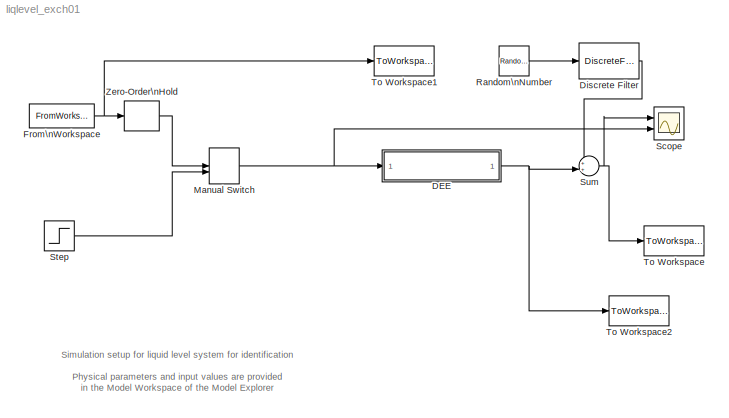
MODEL liqlevel_exch01
KIND model
WORKSPACE source: MATLAB code (in-file)
WORKSPACE code: Cv = 1.5; Ac = 2;
WORKSPACE x0 = 9
WORKSPACE uss = Cv*sqrt(x0)
WORKSPACE tau = Ac*2*sqrt(x0)/Cv
WORKSPACE sampfact = 8
WORKSPACE Ts = tau/sampfact
WORKSPACE f_max = (4/sampfact)/(2*pi)  (= 0.0795774715459)
WORKSPACE B_max = 1/5  (= 0.2)
WORKSPACE usig = idinput(2555,'prbs',[0 B_max],[-1 1])
WORKSPACE uin = [(0:1:length(usig)-1)'*Ts (usig*0.05+1)*uss]
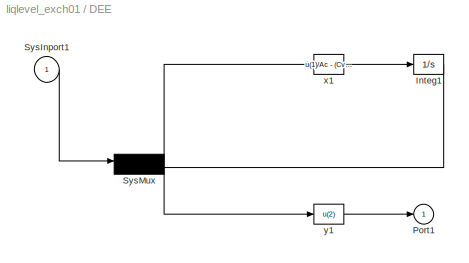
BLOCK [SubSystem] DEE
  OpenFcn = diffeqed
  Ports = [1, 1]
  RequestExecContextInheritance = off
  SID = 1
BLOCK [Integrator] DEE/Integ1
  InitialCondition = x0
  Ports = [1, 1]
  SID = 3
BLOCK [Outport] DEE/Port1
  SID = 7
BLOCK [Inport] DEE/SysInport1
  SID = 2
BLOCK [Mux] DEE/SysMux
  Inputs = 2
  Ports = [2, 1]
  SID = 4
BLOCK [Fcn] DEE/x1
  Expr = u(1)/Ac - (Cv/Ac)*sqrt(u(2))
  SID = 5
BLOCK [Fcn] DEE/y1
  Expr = u(2)
  SID = 6
BLOCK [DiscreteFilter] Discrete Filter
  Denominator = [1 -0.9]
  InputPortMap = u0
  Ports = [1, 1]
  SID = 19
BLOCK [FromWorkspace] From\nWorkspace
  Interpolate = off
  OutputAfterFinalValue = Holding final value
  SID = 8
  SampleTime = Ts
  VariableName = uin
BLOCK [ManualSwitch] Manual Switch
  SID = 9
BLOCK [RandomNumber] Random\nNumber
  SID = 10
  SampleTime = Ts
  Variance = 0.02092
BLOCK [Scope] Scope
  Floating = off
  NumInputPorts = 2
  Ports = [2]
  SID = 11
  ScopeSpecificationString = Simulink.scopes.TimeScopeBlockCfg('CurrentConfiguration', extmgr.ConfigurationSet(extmgr.Configuration('Core','General UI',true),extmgr.Configuration('Core','Source UI',true),extmgr.Configuration('Sources','WiredSimulink',true,'DataLoggingSaveFormat','StructureWithTime','DataLoggingLimitDataPoints',true,'DataLoggingDecimation','1','DataLoggingDecimateData',true),extmgr.Configuration('Visuals','Tim...<+2372ch>
BLOCK [Step] Step
  After = 1.05*uss
  Before = uss
  SID = 12
  SampleTime = 0
  Time = 5
BLOCK [Sum] Sum
  Inputs = ++|
  Ports = [2, 1]
  SID = 13
BLOCK [ToWorkspace] To Workspace
  MaxDataPoints = inf
  Ports = [1]
  SID = 14
  SampleTime = Ts
  VariableName = yk
BLOCK [ToWorkspace] To Workspace1
  MaxDataPoints = inf
  Ports = [1]
  SID = 15
  SampleTime = Ts
  VariableName = uk
BLOCK [ToWorkspace] To Workspace2
  MaxDataPoints = inf
  Ports = [1]
  SID = 17
  SampleTime = Ts
  VariableName = ykstar
BLOCK [ZeroOrderHold] Zero-Order\nHold
  SID = 16
  SampleTime = Ts
ANNOTATION (root): Simulation setup for liquid level system for identification\n\nPhysical parameters and input values are provided \nin the Model Workspace of the Model Explorer
LINE DEE/Integ1:1 -> DEE/SysMux:2
LINE DEE/SysInport1:1 -> DEE/SysMux:1
NET DEE/SysMux:1 -> DEE/x1:1, DEE/y1:1
LINE DEE/x1:1 -> DEE/Integ1:1
LINE DEE/y1:1 -> DEE/Port1:1
NET DEE:1 -> Sum:2, To Workspace2:1
LINE Discrete Filter:1 -> Sum:1
NET From\nWorkspace:1 -> To Workspace1:1, Zero-Order\nHold:1
NET Manual Switch:1 -> DEE:1, Scope:2
LINE Random\nNumber:1 -> Discrete Filter:1
LINE Step:1 -> Manual Switch:2
NET Sum:1 -> Scope:1, To Workspace:1
LINE Zero-Order\nHold:1 -> Manual Switch:1
note: NET lines group one-source signal fan-out (src -> all destinations, sorted); 1:1 wires keep LINE
